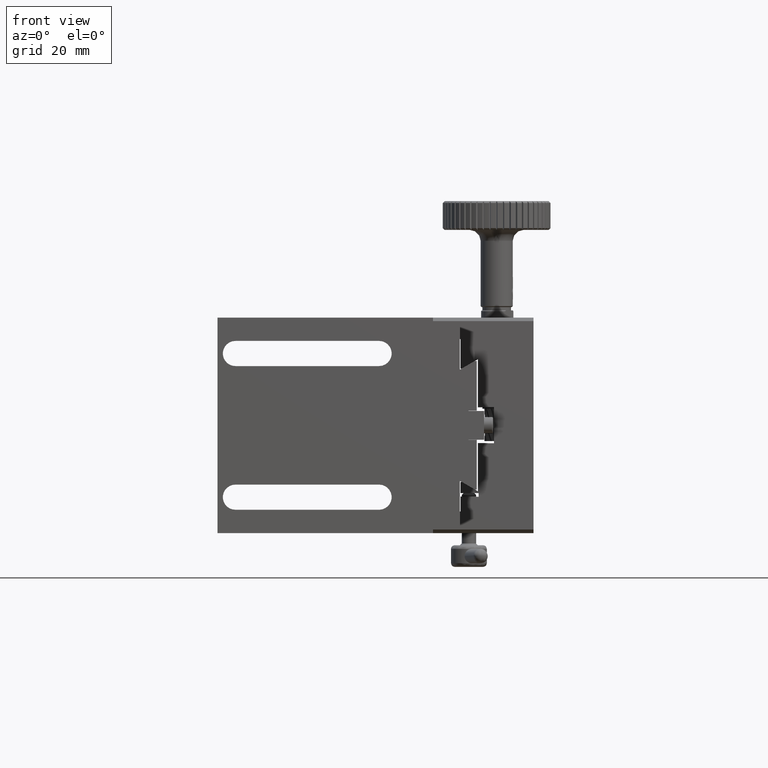
[diagram: clean part render]
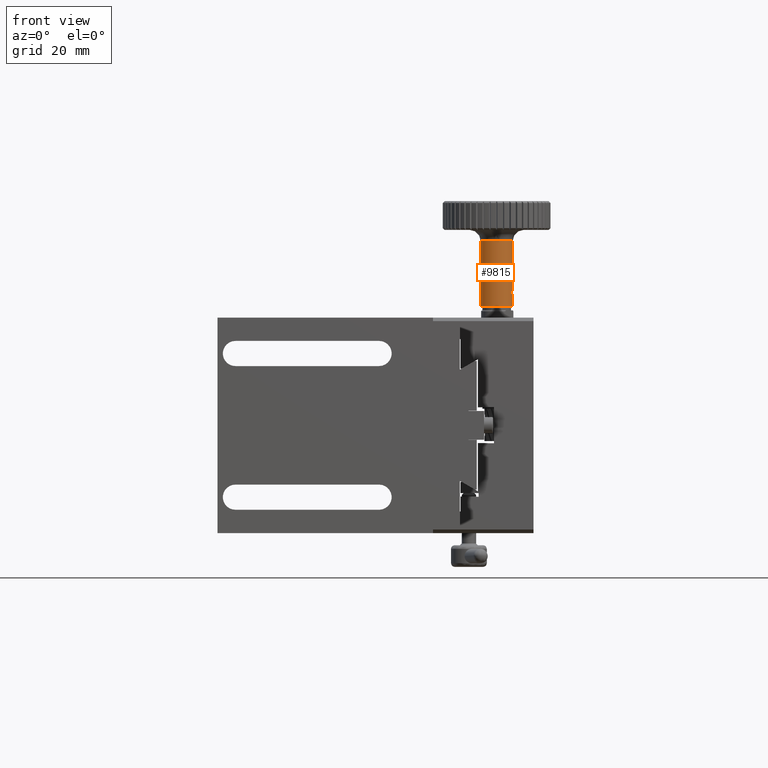
[diagram: same view with one face highlighted and labeled with its STEP entity id]
A machine part, front view. The second image highlights one B-rep face of the part: STEP entity #9815.
In plain terms, the highlighted cylindrical surface (bore or boss wall) has radius 4.5 mm, axis along (-0, 0, -1).
Its self-contained STEP definition (entity closure, byte-faithful):
#572 = CARTESIAN_POINT ( 'NONE',  ( 66.86667711743210418, 134.7656931518161230, 125.9794056287579735 ) ) ;
#3329 = AXIS2_PLACEMENT_3D ( 'NONE', #7023, #30234, #87467 ) ;
#3513 = AXIS2_PLACEMENT_3D ( 'NONE', #34612, #59933, #53453 ) ;
#3790 = FACE_OUTER_BOUND ( 'NONE', #81988, .T. ) ;
#6046 = CARTESIAN_POINT ( 'NONE',  ( 71.35709114444618706, 129.9355353331322078, 130.8959447398003704 ) ) ;
#7023 = CARTESIAN_POINT ( 'NONE',  ( 66.86667711743217524, 130.2656931518159809, 144.1794056287579338 ) ) ;
#7134 = CARTESIAN_POINT ( 'NONE',  ( 71.18958467203636076, 129.0157050420730513, 129.5133013287953645 ) ) ;
#8328 = CIRCLE ( 'NONE', #82457, 4.500000000000003553 ) ;
#9815 = ADVANCED_FACE ( 'NONE', ( #76154, #3790, #18425 ), #69097, .T. ) ;
#14176 = CARTESIAN_POINT ( 'NONE',  ( 71.30197046421064044, 129.4963784167639460, 130.6778789629051687 ) ) ;
#14702 = CARTESIAN_POINT ( 'NONE',  ( 71.23457797354102183, 131.3490242745220939, 130.3082903950605669 ) ) ;
#15245 = CARTESIAN_POINT ( 'NONE',  ( 71.36663247902589546, 130.4308385772794736, 128.4295663270908960 ) ) ;
#15631 = ORIENTED_EDGE ( 'NONE', *, *, #35833, .T. ) ;
#15772 = CARTESIAN_POINT ( 'NONE',  ( 71.35709203333041728, 130.5958362869745315, 128.4628634975999830 ) ) ;
#16302 = CARTESIAN_POINT ( 'NONE',  ( 71.18958123387974979, 131.5156931518160945, 129.6794056287579622 ) ) ;
#18425 = FACE_BOUND ( 'NONE', #20021, .T. ) ;
#20021 = EDGE_LOOP ( 'NONE', ( #102361 ) ) ;
#22802 = CARTESIAN_POINT ( 'NONE',  ( 71.22452032293041668, 129.1430821963031974, 129.1236163761918476 ) ) ;
#23332 = CARTESIAN_POINT ( 'NONE',  ( 71.18958123387973558, 131.5156931518160661, 129.5133973727314753 ) ) ;
#24209 = CARTESIAN_POINT ( 'NONE',  ( 66.86667711743210418, 130.2656931518161230, 125.9794056287579451 ) ) ;
#24396 = CARTESIAN_POINT ( 'NONE',  ( 71.32489007005808901, 130.8963008791538414, 130.7711305979917142 ) ) ;
#26205 = ORIENTED_EDGE ( 'NONE', *, *, #46669, .T. ) ;
#28064 = EDGE_CURVE ( 'NONE', #31393, #31393, #105629, .T. ) ;
#29173 = CIRCLE ( 'NONE', #3329, 4.500000000000003553 ) ;
#30234 = DIRECTION ( 'NONE',  ( -3.491481338843133355E-15, 6.982962677686266711E-15, -1.000000000000000000 ) ) ;
#30346 = CARTESIAN_POINT ( 'NONE',  ( 71.36663247695499024, 130.1005403595698056, 130.9292449229695592 ) ) ;
#31393 = VERTEX_POINT ( 'NONE', #57247 ) ;
#31432 = CARTESIAN_POINT ( 'NONE',  ( 71.23281952967903408, 131.3570354548760690, 129.0483258856722273 ) ) ;
#31954 = CARTESIAN_POINT ( 'NONE',  ( 71.25604103393185085, 131.2584915295093708, 130.4432470730122873 ) ) ;
#34612 = CARTESIAN_POINT ( 'NONE',  ( 66.86667711743210418, 130.2656931518161230, 125.6794056287579622 ) ) ;
#35833 = EDGE_CURVE ( 'NONE', #82091, #82091, #8328, .T. ) ;
#38449 = CARTESIAN_POINT ( 'NONE',  ( 71.36669918925676370, 130.3464382675335571, 130.9294850873618259 ) ) ;
#38984 = CARTESIAN_POINT ( 'NONE',  ( 71.34926380200478491, 130.6684943738562765, 130.8655795426844008 ) ) ;
#39526 = CARTESIAN_POINT ( 'NONE',  ( 71.22451308101189227, 131.3883321407304550, 130.2351387519204025 ) ) ;
#40065 = CARTESIAN_POINT ( 'NONE',  ( 71.35567023064452030, 130.5903646221785834, 130.8892801753380581 ) ) ;
#40924 = DIRECTION ( 'NONE',  ( 3.491481338843133355E-15, -6.982962677686266711E-15, 1.000000000000000000 ) ) ;
#46669 = EDGE_CURVE ( 'NONE', #91775, #91775, #29173, .T. ) ;
#47073 = CARTESIAN_POINT ( 'NONE',  ( 71.25603244847725648, 129.2670781051782853, 130.4485364038539785 ) ) ;
#48150 = CARTESIAN_POINT ( 'NONE',  ( 71.32489360731506167, 129.6351119186167296, 128.5876665207119913 ) ) ;
#51290 = CARTESIAN_POINT ( 'NONE',  ( 66.86667711743218945, 125.7656931518159951, 144.1794056287579053 ) ) ;
#53453 = DIRECTION ( 'NONE',  ( 0.000000000000000000, 1.000000000000000000, 6.167905692361976222E-15 ) ) ;
#55168 = CARTESIAN_POINT ( 'NONE',  ( 71.23281191272579349, 129.1743206642319990, 130.3104353512420630 ) ) ;
#55702 = CARTESIAN_POINT ( 'NONE',  ( 71.19946614095995585, 131.4827251415624971, 129.3505853123006659 ) ) ;
#56224 = CARTESIAN_POINT ( 'NONE',  ( 71.35567119869777741, 129.9410359149749468, 128.4695275077982615 ) ) ;
#56755 = CARTESIAN_POINT ( 'NONE',  ( 71.19946027163062752, 129.0486405251711233, 130.0081537409813848 ) ) ;
#57247 = CARTESIAN_POINT ( 'NONE',  ( 71.18958123387976400, 131.5156931518161230, 129.6794056287579338 ) ) ;
#57286 = CARTESIAN_POINT ( 'NONE',  ( 71.18958123387976400, 131.5156931518161514, 129.8454138847843637 ) ) ;
#59933 = DIRECTION ( 'NONE',  ( -3.491481338843133355E-15, 6.982962677686266711E-15, -1.000000000000000000 ) ) ;
#64332 = CARTESIAN_POINT ( 'NONE',  ( 71.25604811618559609, 129.2729260530320232, 128.9155239481140427 ) ) ;
#64852 = CARTESIAN_POINT ( 'NONE',  ( 71.18958123387974979, 131.5156931518160945, 129.6794056287579622 ) ) ;
#69097 = CYLINDRICAL_SURFACE ( 'NONE', #3513, 4.500000000000003553 ) ;
#71351 = CARTESIAN_POINT ( 'NONE',  ( 71.30223347122539224, 131.0336378821383789, 130.6791392667947491 ) ) ;
#71890 = CARTESIAN_POINT ( 'NONE',  ( 71.32484169282638220, 130.8962399187682593, 128.5879020688641674 ) ) ;
#72433 = CARTESIAN_POINT ( 'NONE',  ( 71.26751828632741592, 129.3243792932481142, 128.8529043910205019 ) ) ;
#72968 = CARTESIAN_POINT ( 'NONE',  ( 71.19955321677298343, 131.4824080105068447, 130.0091560905962353 ) ) ;
#73847 = DIRECTION ( 'NONE',  ( 0.000000000000000000, 1.000000000000000000, 6.167905692361976222E-15 ) ) ;
#76154 = FACE_OUTER_BOUND ( 'NONE', #98974, .T. ) ;
#80010 = CARTESIAN_POINT ( 'NONE',  ( 71.23458535475485576, 129.1823917591029272, 129.0504701575073341 ) ) ;
#80548 = CARTESIAN_POINT ( 'NONE',  ( 71.36440608352725690, 130.4297202278872305, 130.9213005922896400 ) ) ;
#81081 = CARTESIAN_POINT ( 'NONE',  ( 71.19955891768147183, 129.0489983052548837, 129.3495846876793109 ) ) ;
#81988 = EDGE_LOOP ( 'NONE', ( #26205 ) ) ;
#82091 = VERTEX_POINT ( 'NONE', #572 ) ;
#82457 = AXIS2_PLACEMENT_3D ( 'NONE', #24209, #40924, #73847 ) ;
#87467 = DIRECTION ( 'NONE',  ( 3.083952846180988111E-15, -1.000000000000000000, -6.167905692361976222E-15 ) ) ;
#88112 = CARTESIAN_POINT ( 'NONE',  ( 71.30223874455400335, 129.4977789972986955, 128.6796495802407492 ) ) ;
#88636 = CARTESIAN_POINT ( 'NONE',  ( 71.26751156388493769, 131.2070384625499742, 130.5058713690778518 ) ) ;
#89176 = CARTESIAN_POINT ( 'NONE',  ( 71.36440629264021140, 130.1016734897219180, 128.4375099248211711 ) ) ;
#91775 = VERTEX_POINT ( 'NONE', #51290 ) ;
#96702 = CARTESIAN_POINT ( 'NONE',  ( 71.36669918822214242, 130.1849517165122734, 128.4293261738789340 ) ) ;
#97226 = CARTESIAN_POINT ( 'NONE',  ( 71.18957779757631954, 129.0156812679678353, 129.8453309228005423 ) ) ;
#98974 = EDGE_LOOP ( 'NONE', ( #15631 ) ) ;
#102361 = ORIENTED_EDGE ( 'NONE', *, *, #28064, .T. ) ;
#104229 = CARTESIAN_POINT ( 'NONE',  ( 71.32483823440645665, 129.6351205752311841, 130.7708953536720742 ) ) ;
#104776 = CARTESIAN_POINT ( 'NONE',  ( 71.25603973418591863, 131.2642760005800255, 128.9102346313294731 ) ) ;
#105317 = CARTESIAN_POINT ( 'NONE',  ( 71.30197556192763386, 131.0349782715582876, 128.6809106945324288 ) ) ;
#105629 = B_SPLINE_CURVE_WITH_KNOTS ( 'NONE', 3,
 ( #16302, #23332, #55702, #31432, #104776, #105317, #71890, #15772, #15245, #96702, #89176, #56224, #105843, #48150, #88112, #72433, #64332, #80010, #22802, #81081, #7134, #97226, #56755, #55168, #47073, #14176, #104229, #6046, #30346, #38449, #80548, #40065, #38984, #24396, #71351, #88636, #31954, #14702, #39526, #72968, #57286, #64852 ),
 .UNSPECIFIED., .T., .F.,
 ( 4, 2, 2, 2, 2, 2, 2, 2, 2, 2, 2, 2, 2, 2, 2, 2, 2, 2, 2, 2, 4 ),
 ( 0.000000000000000000, 0.0004907556341356343567, 0.0009815112682712687133, 0.001472266902406903178, 0.001963022536542537427, 0.002208400353610313459, 0.002453778170678089059, 0.002944533804813640257, 0.003189911621881447949, 0.003435289438949255206, 0.003926045073084870156, 0.004416800707220485539, 0.004907556341356100922, 0.005398311975491715438, 0.005889067609627330821, 0.006134445426695096446, 0.006379823243762862070, 0.006870578877898367298, 0.007115956694966118178, 0.007361334512033870792, 0.007852090146169410714 ),
 .UNSPECIFIED. ) ;
#105843 = CARTESIAN_POINT ( 'NONE',  ( 71.34926531806641492, 129.8629093833793320, 128.4932260560081545 ) ) ;